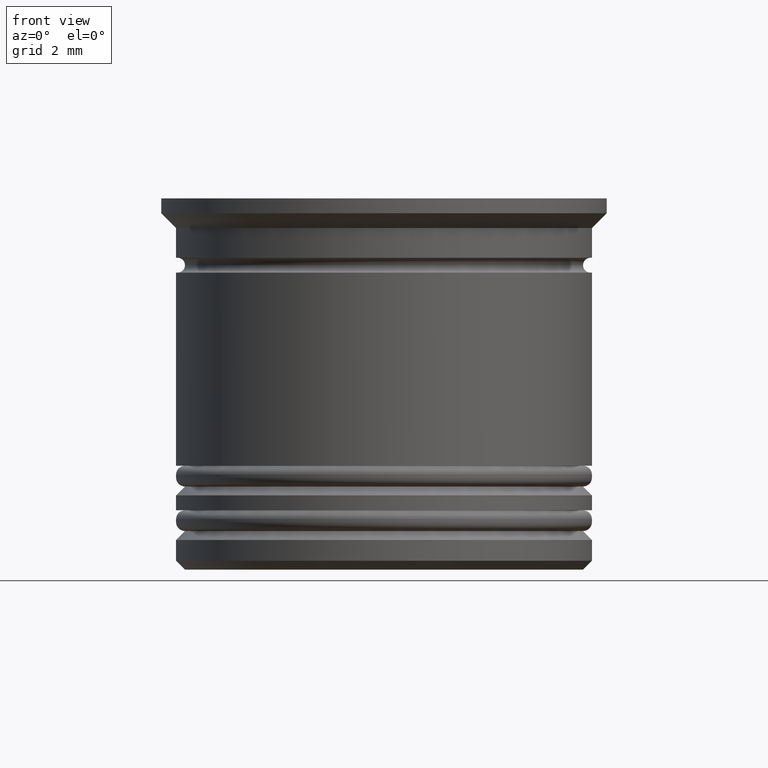
[diagram: clean part render]
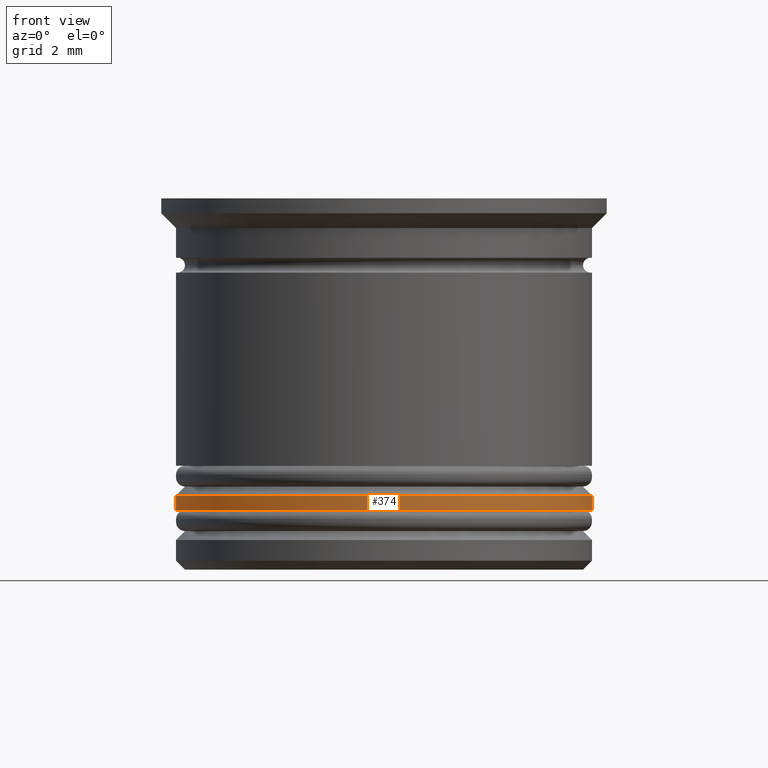
[diagram: same view with one face highlighted and labeled with its STEP entity id]
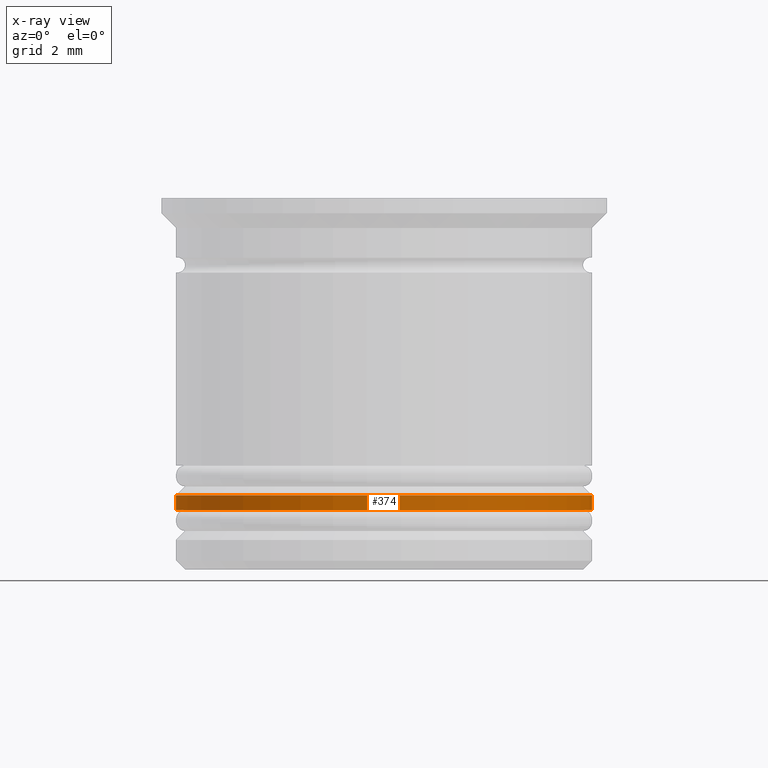
[diagram: x-ray of the same camera — body ghosted, the highlighted face saturated]
A machine part, front view. The second image highlights one B-rep face of the part: STEP entity #374.
The next image is the same camera in x-ray: the body ghosted, the highlighted face saturated — about 0% of this face is hidden behind the body in this view.
In plain terms, the highlighted cylindrical surface (partial cylindrical patch) has radius 7 mm, axis along (-0, -0, 1).
Its self-contained STEP definition (entity closure, byte-faithful):
#2 = DIRECTION ( 'NONE',  ( -0.000000000000000000, -0.000000000000000000, 1.000000000000000000 ) ) ;
#35 = VERTEX_POINT ( 'NONE', #879 ) ;
#54 = EDGE_CURVE ( 'NONE', #807, #1621, #851, .T. ) ;
#127 = DIRECTION ( 'NONE',  ( -0.000000000000000000, -0.000000000000000000, 1.000000000000000000 ) ) ;
#156 = DIRECTION ( 'NONE',  ( -1.000000000000000000, 0.000000000000000000, 0.000000000000000000 ) ) ;
#171 = EDGE_CURVE ( 'NONE', #389, #1621, #1425, .T. ) ;
#374 = ADVANCED_FACE ( 'NONE', ( #1829 ), #1485, .T. ) ;
#389 = VERTEX_POINT ( 'NONE', #762 ) ;
#427 = DIRECTION ( 'NONE',  ( -0.000000000000000000, -0.000000000000000000, 1.000000000000000000 ) ) ;
#490 = ORIENTED_EDGE ( 'NONE', *, *, #171, .T. ) ;
#505 = CIRCLE ( 'NONE', #1687, 7.000000000000001776 ) ;
#762 = CARTESIAN_POINT ( 'NONE',  ( 7.000000000000000888, 0.000000000000000000, -10.00000000000000533 ) ) ;
#807 = VERTEX_POINT ( 'NONE', #1862 ) ;
#820 = VECTOR ( 'NONE', #427, 1000.000000000000000 ) ;
#851 = LINE ( 'NONE', #1160, #820 ) ;
#860 = EDGE_LOOP ( 'NONE', ( #1809, #1275, #880, #490 ) ) ;
#879 = CARTESIAN_POINT ( 'NONE',  ( 7.000000000000001776, 0.000000000000000000, -10.50000000000000178 ) ) ;
#880 = ORIENTED_EDGE ( 'NONE', *, *, #1580, .T. ) ;
#982 = AXIS2_PLACEMENT_3D ( 'NONE', #1226, #127, #1664 ) ;
#1160 = CARTESIAN_POINT ( 'NONE',  ( -7.000000000000000888, 8.572527594031474176E-16, 0.000000000000000000 ) ) ;
#1219 = LINE ( 'NONE', #1838, #1984 ) ;
#1226 = CARTESIAN_POINT ( 'NONE',  ( 0.000000000000000000, 0.000000000000000000, 0.000000000000000000 ) ) ;
#1275 = ORIENTED_EDGE ( 'NONE', *, *, #1865, .T. ) ;
#1342 = CARTESIAN_POINT ( 'NONE',  ( 0.000000000000000000, 0.000000000000000000, -10.50000000000000178 ) ) ;
#1353 = DIRECTION ( 'NONE',  ( -0.000000000000000000, -0.000000000000000000, 1.000000000000000000 ) ) ;
#1425 = CIRCLE ( 'NONE', #1550, 7.000000000000000888 ) ;
#1485 = CYLINDRICAL_SURFACE ( 'NONE', #982, 7.000000000000000888 ) ;
#1500 = CARTESIAN_POINT ( 'NONE',  ( 0.000000000000000000, 0.000000000000000000, -10.00000000000000533 ) ) ;
#1536 = DIRECTION ( 'NONE',  ( 1.000000000000000000, 0.000000000000000000, 0.000000000000000000 ) ) ;
#1541 = DIRECTION ( 'NONE',  ( 0.000000000000000000, 0.000000000000000000, -1.000000000000000000 ) ) ;
#1550 = AXIS2_PLACEMENT_3D ( 'NONE', #1500, #1541, #156 ) ;
#1580 = EDGE_CURVE ( 'NONE', #35, #389, #1219, .T. ) ;
#1621 = VERTEX_POINT ( 'NONE', #1738 ) ;
#1664 = DIRECTION ( 'NONE',  ( 1.000000000000000000, 0.000000000000000000, 0.000000000000000000 ) ) ;
#1687 = AXIS2_PLACEMENT_3D ( 'NONE', #1342, #2, #1536 ) ;
#1738 = CARTESIAN_POINT ( 'NONE',  ( -7.000000000000000888, 8.572527594031474176E-16, -10.00000000000000533 ) ) ;
#1809 = ORIENTED_EDGE ( 'NONE', *, *, #54, .F. ) ;
#1829 = FACE_OUTER_BOUND ( 'NONE', #860, .T. ) ;
#1838 = CARTESIAN_POINT ( 'NONE',  ( 7.000000000000000888, 0.000000000000000000, 0.000000000000000000 ) ) ;
#1862 = CARTESIAN_POINT ( 'NONE',  ( -7.000000000000002665, 8.572527594031475162E-16, -10.50000000000000178 ) ) ;
#1865 = EDGE_CURVE ( 'NONE', #807, #35, #505, .T. ) ;
#1984 = VECTOR ( 'NONE', #1353, 1000.000000000000000 ) ;